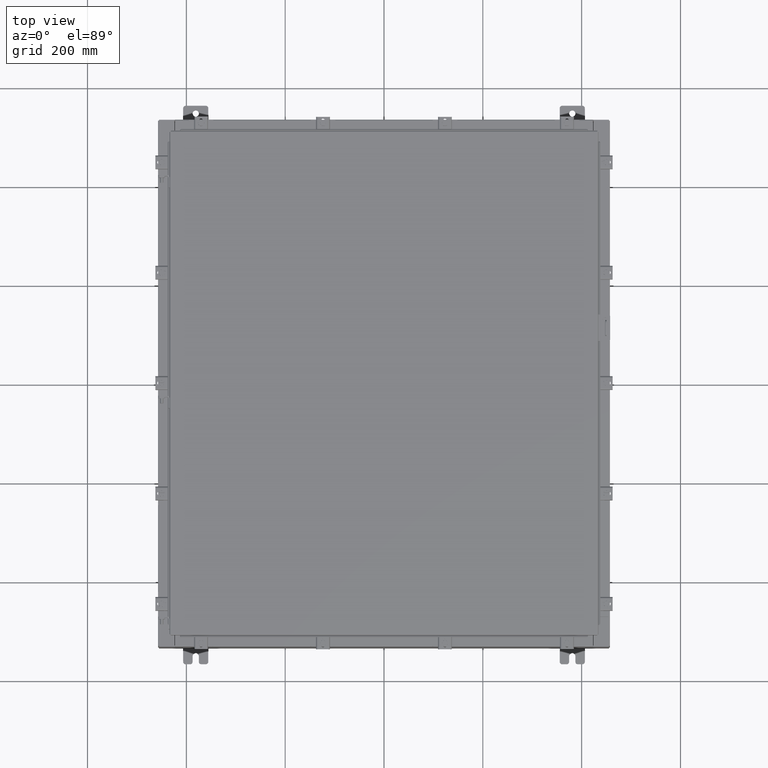
[diagram: clean part render]
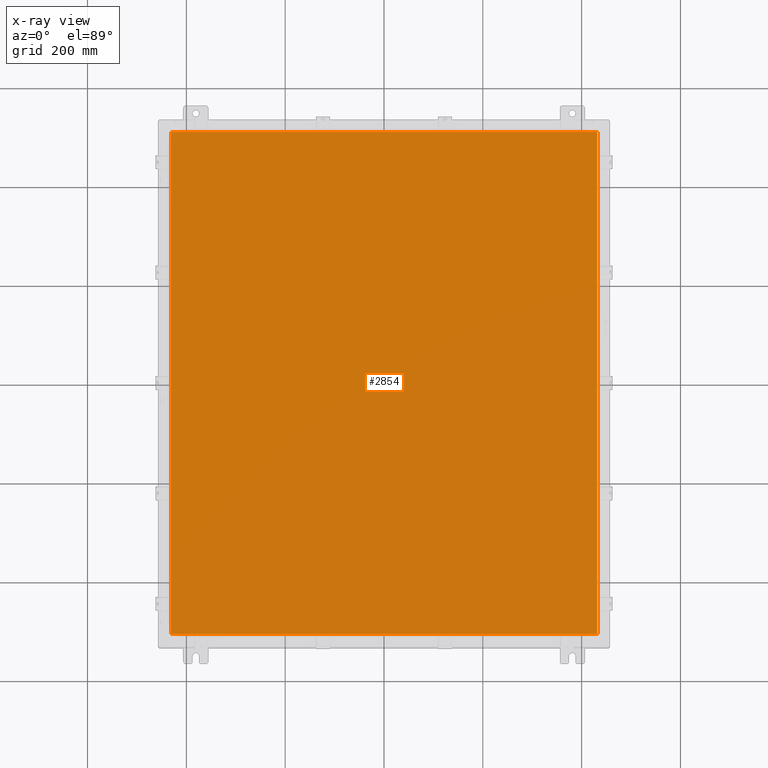
[diagram: x-ray — body ghosted, one internal face saturated and labeled with its STEP entity id]
A machine part, top view, then the same camera in x-ray: the body is ghosted and one INTERNAL B-rep face — a face not visible from any outside direction — is saturated and labeled: STEP entity #2854.
In plain terms, the highlighted planar face has unit normal (0, 0, -1).
Its self-contained STEP definition (entity closure, byte-faithful):
#190 = CARTESIAN_POINT ( 'NONE',  ( -16.99029999999999400, -20.00630000000000300, -0.07470000000000234800 ) ) ;
#1600 = CARTESIAN_POINT ( 'NONE',  ( -16.99030000000000100, 20.00630000000000300, -0.07470000000000000300 ) ) ;
#2854 = ADVANCED_FACE ( 'NONE', ( #17852 ), #4708, .T. ) ;
#2925 = EDGE_LOOP ( 'NONE', ( #14808, #12140, #18177, #23695 ) ) ;
#3334 = AXIS2_PLACEMENT_3D ( 'NONE', #6519, #17494, #26453 ) ;
#3623 = EDGE_CURVE ( 'NONE', #24310, #26401, #14534, .T. ) ;
#4545 = VECTOR ( 'NONE', #16199, 39.37007874015748100 ) ;
#4645 = EDGE_CURVE ( 'NONE', #26401, #18384, #10178, .T. ) ;
#4708 = PLANE ( 'NONE',  #3334 ) ;
#6519 = CARTESIAN_POINT ( 'NONE',  ( 0.0000000000000000000, 0.0000000000000000000, -0.07470000000000000300 ) ) ;
#6761 = VERTEX_POINT ( 'NONE', #8924 ) ;
#8623 = CARTESIAN_POINT ( 'NONE',  ( -16.99030000000000100, 20.00630000000000300, -0.07470000000000019700 ) ) ;
#8910 = VECTOR ( 'NONE', #19624, 39.37007874015748100 ) ;
#8924 = CARTESIAN_POINT ( 'NONE',  ( -16.99030000000000100, -20.00630000000000300, -0.07470000000000000300 ) ) ;
#10178 = LINE ( 'NONE', #17654, #4545 ) ;
#10236 = VECTOR ( 'NONE', #14908, 39.37007874015748100 ) ;
#12140 = ORIENTED_EDGE ( 'NONE', *, *, #27096, .F. ) ;
#13870 = VECTOR ( 'NONE', #17126, 39.37007874015748100 ) ;
#14494 = CARTESIAN_POINT ( 'NONE',  ( 16.99029999999999800, 20.00630000000000300, -0.07470000000000000300 ) ) ;
#14534 = LINE ( 'NONE', #19899, #8910 ) ;
#14808 = ORIENTED_EDGE ( 'NONE', *, *, #3623, .F. ) ;
#14908 = DIRECTION ( 'NONE',  ( 1.000000000000000000, -0.0000000000000000000, -0.0000000000000000000 ) ) ;
#15199 = LINE ( 'NONE', #190, #10236 ) ;
#15889 = LINE ( 'NONE', #8623, #13870 ) ;
#16199 = DIRECTION ( 'NONE',  ( -1.000000000000000000, -0.0000000000000000000, -0.0000000000000000000 ) ) ;
#17126 = DIRECTION ( 'NONE',  ( 0.0000000000000000000, -1.000000000000000000, 0.0000000000000000000 ) ) ;
#17494 = DIRECTION ( 'NONE',  ( 0.0000000000000000000, 0.0000000000000000000, -1.000000000000000000 ) ) ;
#17654 = CARTESIAN_POINT ( 'NONE',  ( 16.99029999999999800, 20.00630000000000700, -0.07469999999999804600 ) ) ;
#17852 = FACE_OUTER_BOUND ( 'NONE', #2925, .T. ) ;
#18177 = ORIENTED_EDGE ( 'NONE', *, *, #18638, .F. ) ;
#18384 = VERTEX_POINT ( 'NONE', #1600 ) ;
#18638 = EDGE_CURVE ( 'NONE', #18384, #6761, #15889, .T. ) ;
#19624 = DIRECTION ( 'NONE',  ( 0.0000000000000000000, 1.000000000000000000, 0.0000000000000000000 ) ) ;
#19899 = CARTESIAN_POINT ( 'NONE',  ( 16.99029999999999800, -20.00630000000000300, -0.07470000000000019700 ) ) ;
#23172 = CARTESIAN_POINT ( 'NONE',  ( 16.99029999999999800, -20.00630000000000000, -0.07470000000000000300 ) ) ;
#23695 = ORIENTED_EDGE ( 'NONE', *, *, #4645, .F. ) ;
#24310 = VERTEX_POINT ( 'NONE', #23172 ) ;
#26401 = VERTEX_POINT ( 'NONE', #14494 ) ;
#26453 = DIRECTION ( 'NONE',  ( -1.000000000000000000, 0.0000000000000000000, -0.0000000000000000000 ) ) ;
#27096 = EDGE_CURVE ( 'NONE', #6761, #24310, #15199, .T. ) ;